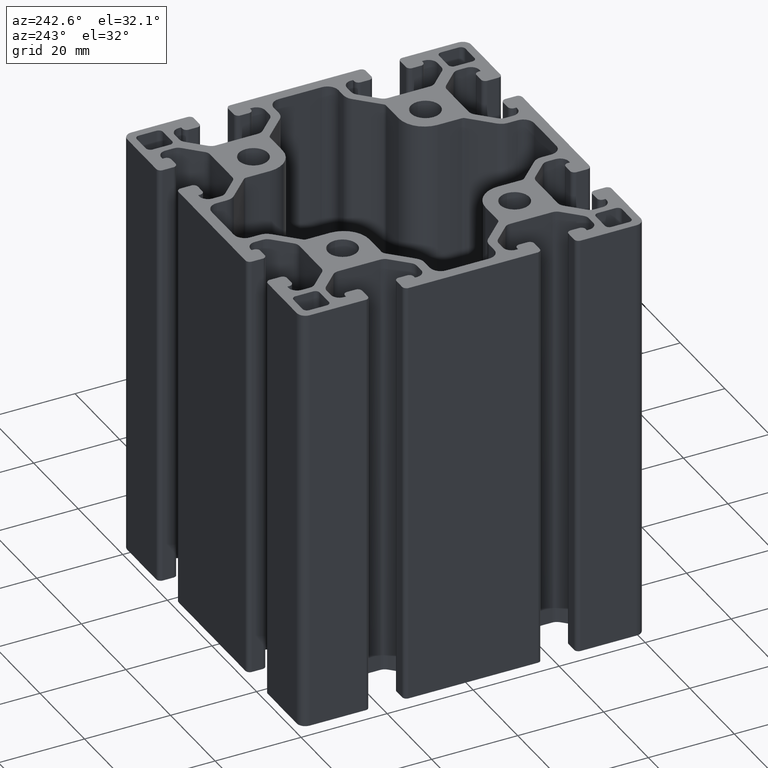
[diagram: clean part render]
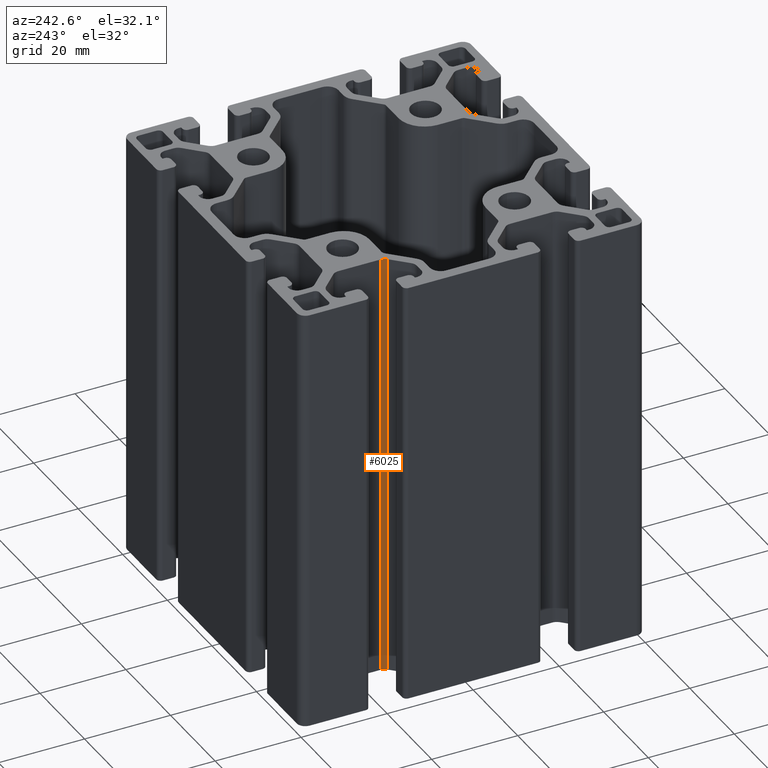
[diagram: same view with one face highlighted and labeled with its STEP entity id]
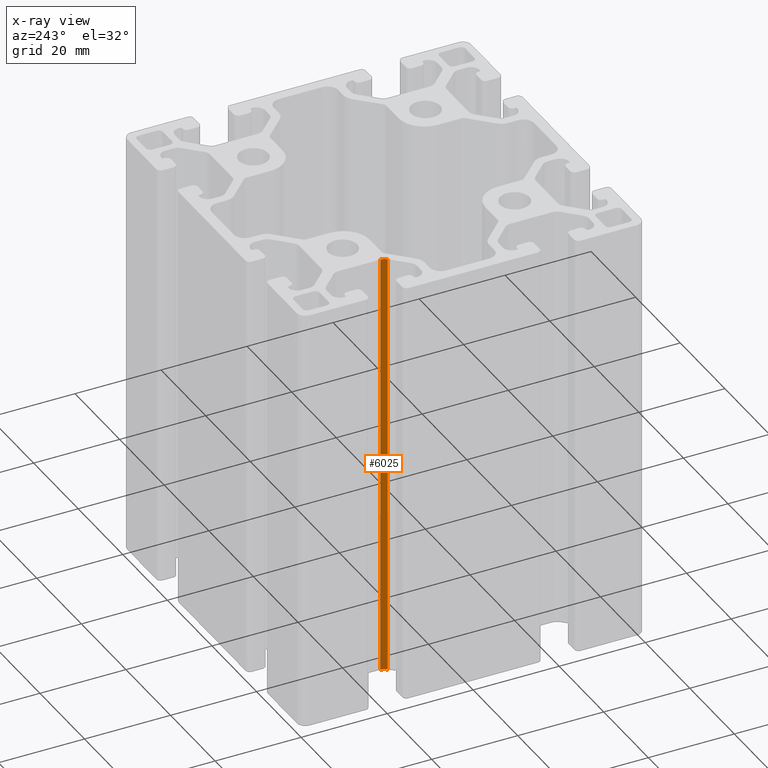
[diagram: x-ray of the same camera — body ghosted, the highlighted face saturated]
A machine part, auxiliary view. The second image highlights one B-rep face of the part: STEP entity #6025.
The next image is the same camera in x-ray: the body ghosted, the highlighted face saturated — about 0% of this face is hidden behind the body in this view.
In plain terms, the highlighted cylindrical surface (edge-blend (fillet) strip) has radius 2 mm, axis along (0, 0, 1).
Its self-contained STEP definition (entity closure, byte-faithful):
#315=FACE_OUTER_BOUND('',#627,.T.);
#627=EDGE_LOOP('',(#4381,#4382,#4383,#4384));
#1072=LINE('',#9365,#1696);
#1073=LINE('',#9371,#1697);
#1696=VECTOR('',#7524,100.);
#1697=VECTOR('',#7531,100.);
#2205=CIRCLE('',#6454,2.00000000000002);
#2206=CIRCLE('',#6455,2.00000000000002);
#2619=VERTEX_POINT('',#9361);
#2620=VERTEX_POINT('',#9363);
#2621=VERTEX_POINT('',#9367);
#2622=VERTEX_POINT('',#9369);
#3348=EDGE_CURVE('',#2620,#2619,#1072,.T.);
#3349=EDGE_CURVE('',#2619,#2621,#2205,.T.);
#3350=EDGE_CURVE('',#2622,#2620,#2206,.T.);
#3351=EDGE_CURVE('',#2622,#2621,#1073,.T.);
#4381=ORIENTED_EDGE('',*,*,#3349,.F.);
#4382=ORIENTED_EDGE('',*,*,#3348,.F.);
#4383=ORIENTED_EDGE('',*,*,#3350,.F.);
#4384=ORIENTED_EDGE('',*,*,#3351,.T.);
#5819=CYLINDRICAL_SURFACE('',#6453,2.00000000000002);
#6025=ADVANCED_FACE('',(#315),#5819,.F.);
#6453=AXIS2_PLACEMENT_3D('',#9366,#7525,#7526);
#6454=AXIS2_PLACEMENT_3D('',#9368,#7527,#7528);
#6455=AXIS2_PLACEMENT_3D('',#9370,#7529,#7530);
#7524=DIRECTION('',(0.,0.,1.));
#7525=DIRECTION('center_axis',(0.,0.,1.));
#7526=DIRECTION('ref_axis',(0.70710678118655,-0.707106781186545,0.));
#7527=DIRECTION('center_axis',(0.,0.,-1.));
#7528=DIRECTION('ref_axis',(0.70710678118655,-0.707106781186545,0.));
#7529=DIRECTION('center_axis',(0.,0.,1.));
#7530=DIRECTION('ref_axis',(0.70710678118655,-0.707106781186545,0.));
#7531=DIRECTION('',(0.,0.,1.));
#9361=CARTESIAN_POINT('',(-27.5,15.0961940777126,100.));
#9363=CARTESIAN_POINT('',(-27.5,15.0961940777126,0.));
#9365=CARTESIAN_POINT('',(-27.5,15.0961940777126,0.));
#9366=CARTESIAN_POINT('Origin',(-29.5,15.0961940777126,0.));
#9367=CARTESIAN_POINT('',(-28.0857864376269,13.6819805153395,100.));
#9368=CARTESIAN_POINT('Origin',(-29.5,15.0961940777126,100.));
#9369=CARTESIAN_POINT('',(-28.0857864376269,13.6819805153395,0.));
#9370=CARTESIAN_POINT('Origin',(-29.5,15.0961940777126,0.));
#9371=CARTESIAN_POINT('',(-28.0857864376269,13.6819805153395,0.));